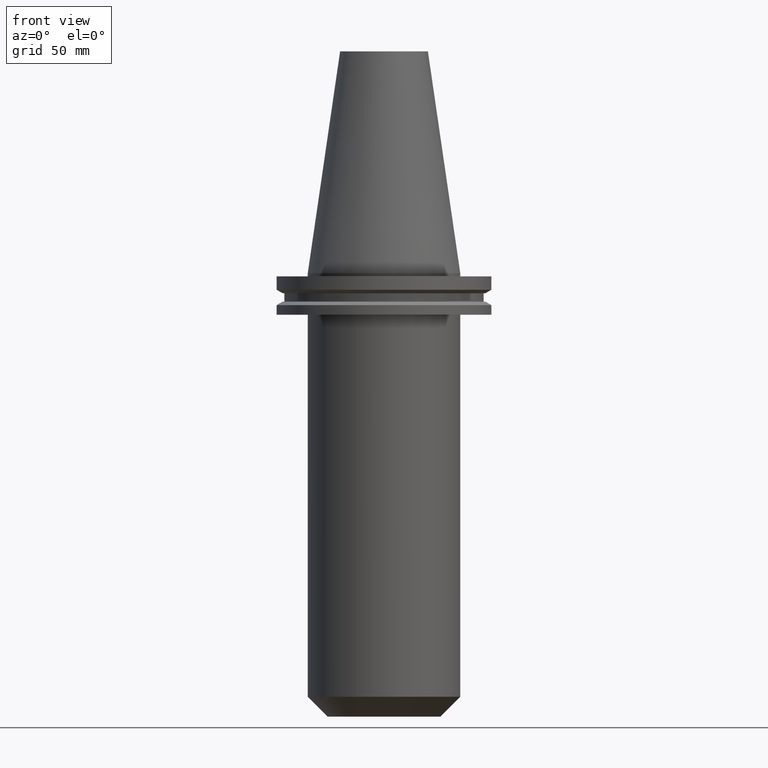
[diagram: clean part render]
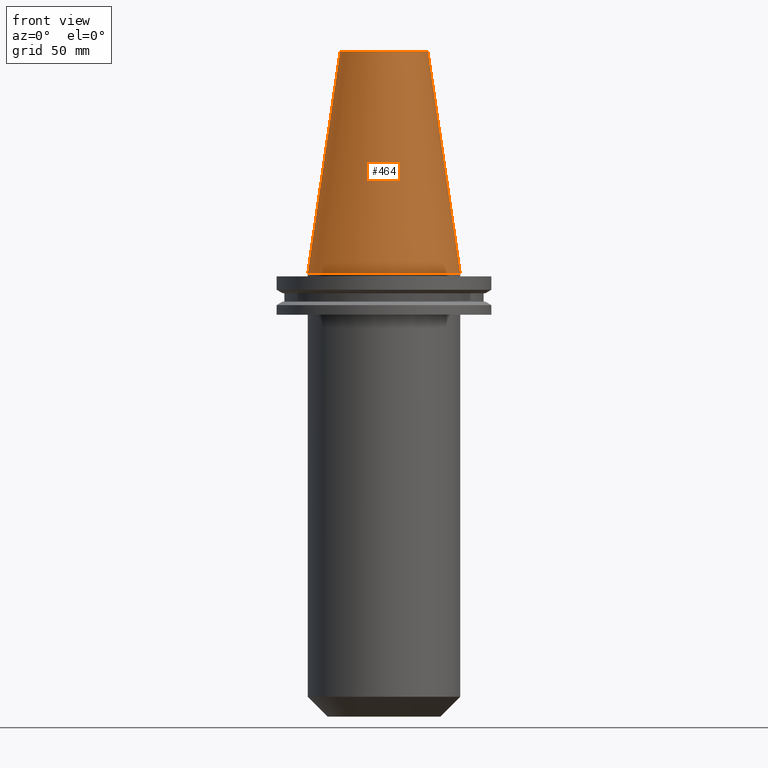
[diagram: same view with one face highlighted and labeled with its STEP entity id]
A machine part, front view. The second image highlights one B-rep face of the part: STEP entity #464.
In plain terms, the highlighted conical surface has half-angle 8.297 deg.
Its self-contained STEP definition (entity closure, byte-faithful):
#15 = ORIENTED_EDGE ( 'NONE', *, *, #111, .T. ) ;
#37 = ORIENTED_EDGE ( 'NONE', *, *, #590, .T. ) ;
#43 = CIRCLE ( 'NONE', #695, 34.92499999999999005 ) ;
#52 = VERTEX_POINT ( 'NONE', #312 ) ;
#90 = DIRECTION ( 'NONE',  ( -0.000000000000000000, -0.000000000000000000, 1.000000000000000000 ) ) ;
#105 = DIRECTION ( 'NONE',  ( 1.000000000000000000, 0.000000000000000000, 0.000000000000000000 ) ) ;
#111 = EDGE_CURVE ( 'NONE', #735, #52, #43, .T. ) ;
#119 = CARTESIAN_POINT ( 'NONE',  ( -34.92499999999999005, 0.000000000000000000, 0.000000000000000000 ) ) ;
#162 = CARTESIAN_POINT ( 'NONE',  ( -34.92499999999999005, 0.000000000000000000, 0.000000000000000000 ) ) ;
#200 = VERTEX_POINT ( 'NONE', #701 ) ;
#205 = EDGE_CURVE ( 'NONE', #507, #200, #461, .T. ) ;
#219 = CARTESIAN_POINT ( 'NONE',  ( 0.000000000000000000, 0.000000000000000000, 0.000000000000000000 ) ) ;
#274 = FACE_OUTER_BOUND ( 'NONE', #558, .T. ) ;
#301 = ORIENTED_EDGE ( 'NONE', *, *, #702, .F. ) ;
#312 = CARTESIAN_POINT ( 'NONE',  ( 34.92499999999999005, 4.277078946022130098E-15, 0.000000000000000000 ) ) ;
#325 = DIRECTION ( 'NONE',  ( 0.000000000000000000, 0.000000000000000000, -1.000000000000000000 ) ) ;
#354 = CARTESIAN_POINT ( 'NONE',  ( -20.10819343178871321, 0.000000000000000000, 101.5999999999999801 ) ) ;
#372 = LINE ( 'NONE', #609, #610 ) ;
#374 = AXIS2_PLACEMENT_3D ( 'NONE', #410, #649, #105 ) ;
#385 = ORIENTED_EDGE ( 'NONE', *, *, #205, .F. ) ;
#388 = AXIS2_PLACEMENT_3D ( 'NONE', #505, #325, #671 ) ;
#399 = DIRECTION ( 'NONE',  ( -0.1443082272672999988, 0.000000000000000000, -0.9895327864921755756 ) ) ;
#410 = CARTESIAN_POINT ( 'NONE',  ( 0.000000000000000000, 0.000000000000000000, 101.5999999999999801 ) ) ;
#461 = CIRCLE ( 'NONE', #374, 20.10819343178871321 ) ;
#464 = ADVANCED_FACE ( 'NONE', ( #274 ), #733, .T. ) ;
#499 = VECTOR ( 'NONE', #399, 999.9999999999998863 ) ;
#505 = CARTESIAN_POINT ( 'NONE',  ( 0.000000000000000000, 0.000000000000000000, 0.000000000000000000 ) ) ;
#507 = VERTEX_POINT ( 'NONE', #354 ) ;
#544 = DIRECTION ( 'NONE',  ( 0.1443082272672999988, 1.767266086135277066E-17, -0.9895327864921755756 ) ) ;
#558 = EDGE_LOOP ( 'NONE', ( #301, #385, #37, #15 ) ) ;
#590 = EDGE_CURVE ( 'NONE', #507, #735, #749, .T. ) ;
#609 = CARTESIAN_POINT ( 'NONE',  ( 34.92499999999999005, 4.277078946022130098E-15, 0.000000000000000000 ) ) ;
#610 = VECTOR ( 'NONE', #544, 999.9999999999998863 ) ;
#638 = DIRECTION ( 'NONE',  ( 1.000000000000000000, 0.000000000000000000, 0.000000000000000000 ) ) ;
#649 = DIRECTION ( 'NONE',  ( -0.000000000000000000, -0.000000000000000000, 1.000000000000000000 ) ) ;
#671 = DIRECTION ( 'NONE',  ( -1.000000000000000000, 0.000000000000000000, 0.000000000000000000 ) ) ;
#695 = AXIS2_PLACEMENT_3D ( 'NONE', #219, #90, #638 ) ;
#701 = CARTESIAN_POINT ( 'NONE',  ( 20.10819343178871321, 3.369811209154858606E-15, 101.5999999999999801 ) ) ;
#702 = EDGE_CURVE ( 'NONE', #200, #52, #372, .T. ) ;
#733 = CONICAL_SURFACE ( 'NONE', #388, 34.92499999999999005, 0.1448138465474119452 ) ;
#735 = VERTEX_POINT ( 'NONE', #119 ) ;
#749 = LINE ( 'NONE', #162, #499 ) ;